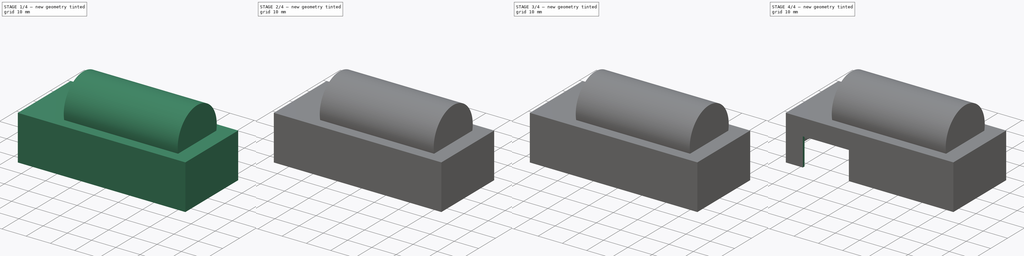
[diagram: build sequence overview — one tinted view per stage of 4, left to right]
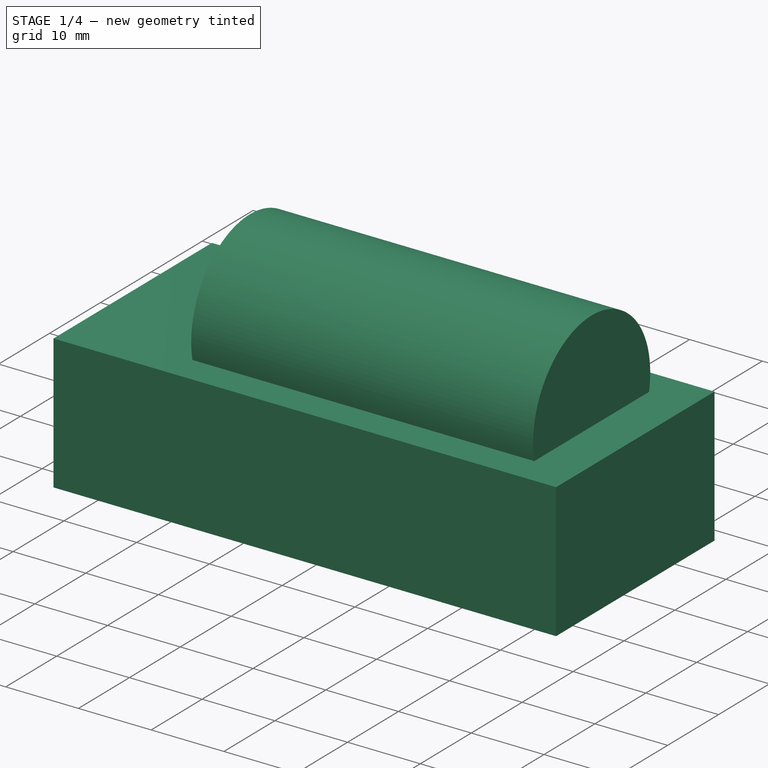
[diagram: stage 1 of 4 — iso view after this stage's code; geometry added in this stage tinted green]
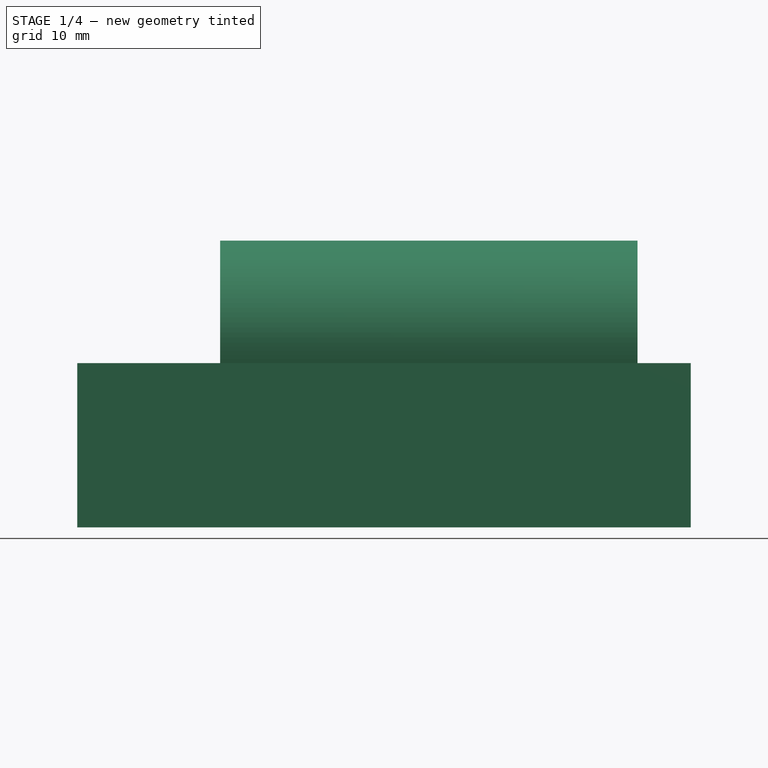
[diagram: stage 1 of 4 — front view after this stage's code; geometry added in this stage tinted green]
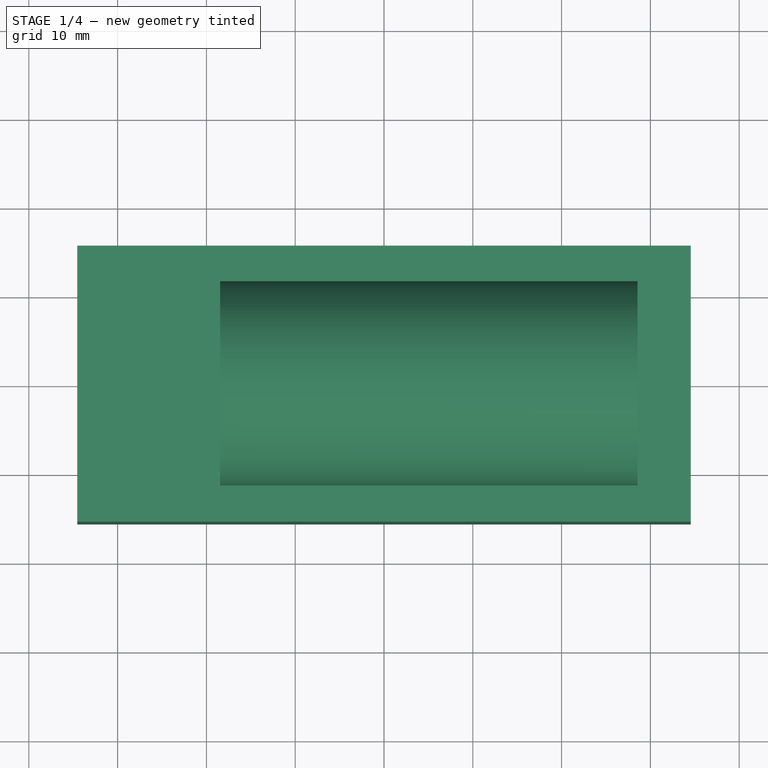
[diagram: stage 1 of 4 — top view after this stage's code; geometry added in this stage tinted green]
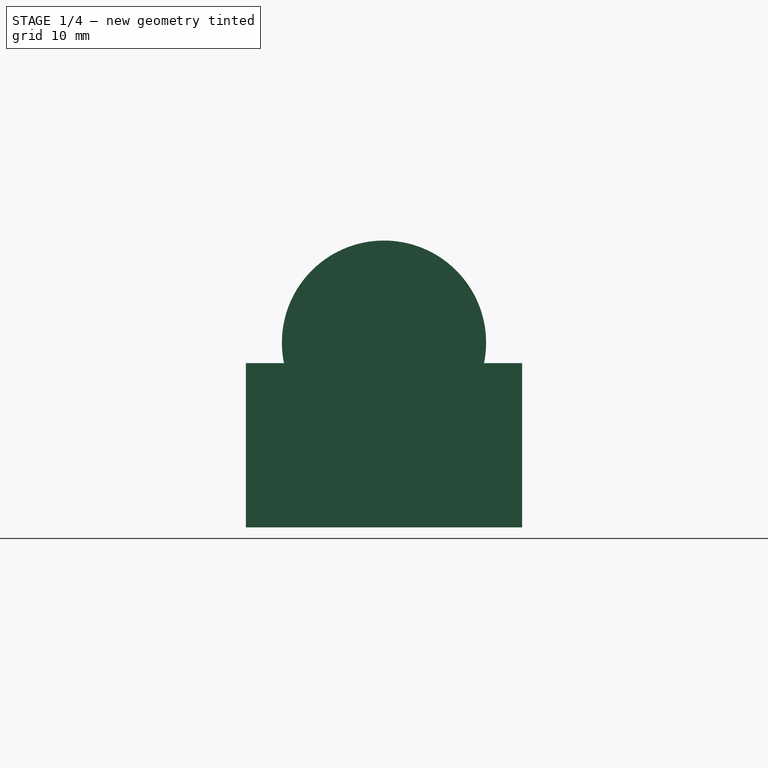
[diagram: stage 1 of 4 — right view after this stage's code; geometry added in this stage tinted green]
FCSTD DOCUMENT  (FreeCAD 0.20R29177 +426 (Git))
Label: ttgo
License: All rights reserved
LicenseURL: http://en.wikipedia.org/wiki/All_rights_reserved
objects: Sketcher::SketchObject×8, PartDesign::Pad×3, PartDesign::Pocket×3, Spreadsheet::Sheet×1, PartDesign::AdditiveCylinder×1, PartDesign::SubtractiveCylinder×1, PartDesign::SubtractiveBox×1, PartDesign::Body×1
note: 27 computed .brp shape members not serialized (recipe doc carries the construction recipe); baked Part::Feature solids carry a one-line shape summary decoded from their .brp

FEATURE [Spreadsheet::Sheet] Spreadsheet  label="args"
  cells = A2=ttgo_len; B2(ttgo_len)==65.09999999999999mm; A3=ttgo_w; B3(ttgo_w)==27.1mm; A4=ttgo_pcb_h; B4(ttgo_pcb_h)==1.3mm; A5=ttgo_lcd_h; B5(ttgo_lcd_h)==4.51mm; A6=ttgo_sd_h; B6==2.73mm; A7=ttgo_wifi_h; B7(ttgo_wifi_h)==3.5mm; A8=ttgo_lora_h; B8(ttgo_lora_h)==10.7mm; A9=ttgo_hole_d; B9(ttgo_hole_d)==2mm; A10=ttgo_hole_edge_dist; B10(ttgo_hole_edge_dist)==24.1mm; A11=ttgo_hole_edge_padding_top; B11(ttgo_hole_edge_padding_top)==4.6mm; A12=ttgo_hole_edge_padding_right; B12(ttgo_hole_edge_padding_right)==4mm; A13=ttgo_wifi_w; B13(ttgo_wifi_w)==6mm; A14=batt_d; B14(batt_d)==21mm; A15=wall_t; B15(wall_t)==1mm; A16=pcb_padding; B16(pcb_padding)==1mm; A17=bat_l; B17(bat_l)==45mm; A18=ttgo_lora_center_left; B18(ttgo_lora_center_left)==14.5mm; A19=ttgo_lora_w; B19(ttgo_lora_w)==8mm
FEATURE [Sketcher::SketchObject] Sketch  label="base"
  FullyConstrained = true
  MapMode = 5
  Support = -> [XY_Plane]
  expr: Constraints[10] = <<args>>.ttgo_w
  expr: Constraints[11] = <<args>>.ttgo_len
  expr: Constraints[22] = <<args>>.pcb_padding
  expr: Constraints[23] = <<args>>.pcb_padding
  sketch-geometry (10):
    g0: LineSegment StartX=-32.55 StartY=13.55 StartZ=0 EndX=-32.55 EndY=-13.55 EndZ=0
    g1: LineSegment StartX=-32.55 StartY=-13.55 StartZ=0 EndX=32.55 EndY=-13.55 EndZ=0
    g2: LineSegment StartX=32.55 StartY=-13.55 StartZ=0 EndX=32.55 EndY=13.55 EndZ=0
    g3: LineSegment StartX=32.55 StartY=13.55 StartZ=0 EndX=-32.55 EndY=13.55 EndZ=0
    g4: GeomPoint X=0 Y=0 Z=0
    g5: LineSegment StartX=-33.55 StartY=14.55 StartZ=0 EndX=-33.55 EndY=-14.55 EndZ=0
    g6: LineSegment StartX=-33.55 StartY=-14.55 StartZ=0 EndX=33.55 EndY=-14.55 EndZ=0
    g7: LineSegment StartX=33.55 StartY=-14.55 StartZ=0 EndX=33.55 EndY=14.55 EndZ=0
    g8: LineSegment StartX=33.55 StartY=14.55 StartZ=0 EndX=-33.55 EndY=14.55 EndZ=0
    g9: GeomPoint X=0 Y=0 Z=0
  constraints (24):
    c: Coincident(g0,g1)
    c: Coincident(g1,g2)
    c: Coincident(g2,g3)
    c: Coincident(g3,g0)
    c: Horizontal(g1)
    c: Horizontal(g3)
    c: Vertical(g0)
    c: Vertical(g2)
    c: Symmetric(g1,g0,g4)
    c: Coincident(g4,g-1)
    c: DistanceY(g2,g2) = 27.1
    c: DistanceX(g3,g3) = 65.1
    c: Coincident(g5,g6)
    c: Coincident(g6,g7)
    c: Coincident(g7,g8)
    c: Coincident(g8,g5)
    c: Horizontal(g6)
    c: Horizontal(g8)
    c: Vertical(g5)
    c: Vertical(g7)
    c: Symmetric(g6,g5,g9)
    c: Coincident(g9,g4)
    c: DistanceX(g5,g0) = 1
    c: DistanceY(g5,g0) = 1
FEATURE [Sketcher::SketchObject] Sketch001  label="box"
  FullyConstrained = true
  MapMode = 5
  Support = -> [XY_Plane]
  expr: Constraints[10] = <<args>>.ttgo_w
  expr: Constraints[11] = <<args>>.ttgo_len
  expr: Constraints[22] = <<args>>.pcb_padding + <<args>>.wall_t
  expr: Constraints[23] = <<args>>.pcb_padding + <<args>>.wall_t
  sketch-geometry (10):
    g0: LineSegment StartX=-32.55 StartY=13.55 StartZ=0 EndX=-32.55 EndY=-13.55 EndZ=0
    g1: LineSegment StartX=-32.55 StartY=-13.55 StartZ=0 EndX=32.55 EndY=-13.55 EndZ=0
    g2: LineSegment StartX=32.55 StartY=-13.55 StartZ=0 EndX=32.55 EndY=13.55 EndZ=0
    g3: LineSegment StartX=32.55 StartY=13.55 StartZ=0 EndX=-32.55 EndY=13.55 EndZ=0
    g4: GeomPoint X=0 Y=0 Z=0
    g5: LineSegment StartX=-34.55 StartY=15.55 StartZ=0 EndX=-34.55 EndY=-15.55 EndZ=0
    g6: LineSegment StartX=-34.55 StartY=-15.55 StartZ=0 EndX=34.55 EndY=-15.55 EndZ=0
    g7: LineSegment StartX=34.55 StartY=-15.55 StartZ=0 EndX=34.55 EndY=15.55 EndZ=0
    g8: LineSegment StartX=34.55 StartY=15.55 StartZ=0 EndX=-34.55 EndY=15.55 EndZ=0
    g9: GeomPoint X=0 Y=0 Z=0
  constraints (24):
    c: Coincident(g0,g1)
    c: Coincident(g1,g2)
    c: Coincident(g2,g3)
    c: Coincident(g3,g0)
    c: Horizontal(g1)
    c: Horizontal(g3)
    c: Vertical(g0)
    c: Vertical(g2)
    c: Symmetric(g1,g0,g4)
    c: Coincident(g4,g-1)
    c: DistanceY(g2,g2) = 27.1
    c: DistanceX(g3,g3) = 65.1
    c: Coincident(g5,g6)
    c: Coincident(g6,g7)
    c: Coincident(g7,g8)
    c: Coincident(g8,g5)
    c: Horizontal(g6)
    c: Horizontal(g8)
    c: Vertical(g5)
    c: Vertical(g7)
    c: Symmetric(g6,g5,g9)
    c: Coincident(g9,g4)
    c: DistanceX(g5,g0) = 2
    c: DistanceY(g5,g0) = 2
FEATURE [PartDesign::Pad] Pad  label="BoxPad"
  Direction = (0,0,1)
  Length = 18.51
  Length2 = 10
  Profile = -> Sketch001
  ReferenceAxis = -> Sketch001 [N_Axis]
  Type = 0
  expr: Length = <<args>>.ttgo_lcd_h + <<args>>.ttgo_pcb_h + <<args>>.ttgo_lora_h + <<args>>.pcb_padding + <<args>>.wall_t
FEATURE [Sketcher::SketchObject] Sketch002  label="battery"
  AttachmentOffset = pos=(0,0,-4) rot=(0,0,1;0rad)
  FullyConstrained = true
  MapMode = 5
  Placement = pos=(-30.55,0,0) rot=(0.57735,-0.57735,-0.57735;2.0944rad)
  Support = -> [Pad]
  expr: .AttachmentOffset.Base.z = -<<args>>.ttgo_wifi_w + 2 * <<args>>.pcb_padding
  expr: Constraints[1] = <<args>>.batt_d
  expr: Constraints[4] = <<args>>.ttgo_pcb_h + <<args>>.ttgo_wifi_h
  sketch-geometry (2):
    g0: Circle CenterX=0 CenterY=15.3 CenterZ=0 NormalX=0 NormalY=0 NormalZ=1 AngleXU=0 Radius=10.5
    g1: GeomPoint X=0 Y=4.8 Z=0
  constraints (5):
    c: PointOnObject(g0,g-2)
    c: Diameter(g0) = 21
    c: PointOnObject(g1,g0)
    c: PointOnObject(g1,g-2)
    c: DistanceY(g-1,g1) = 4.8
FEATURE [PartDesign::AdditiveCylinder] Cylinder  label="BatteryCylinder"
  Angle = 360
  AttacherType = Attacher::AttachEngine3D
  AttachmentOffset = pos=(0,20.81,6) rot=(0,0,1;0rad)
  BaseFeature = -> Pad
  FirstAngle = 0
  Height = 47
  MapMode = 5
  Placement = pos=(28.55,0,20.81) rot=(0.57735,-0.57735,-0.57735;2.0944rad)
  Radius = 11.5
  SecondAngle = 0
  Support = -> [Pad]
  expr: .AttachmentOffset.Base.y = <<args>>.batt_d / 2 + <<args>>.ttgo_lcd_h + <<args>>.ttgo_pcb_h + <<args>>.ttgo_wifi_h + <<args>>.wall_t
  expr: .AttachmentOffset.Base.z = <<args>>.ttgo_wifi_w
  expr: Height = <<args>>.bat_l + 2 * <<args>>.wall_t
  expr: Radius = <<args>>.batt_d / 2 + <<args>>.wall_t
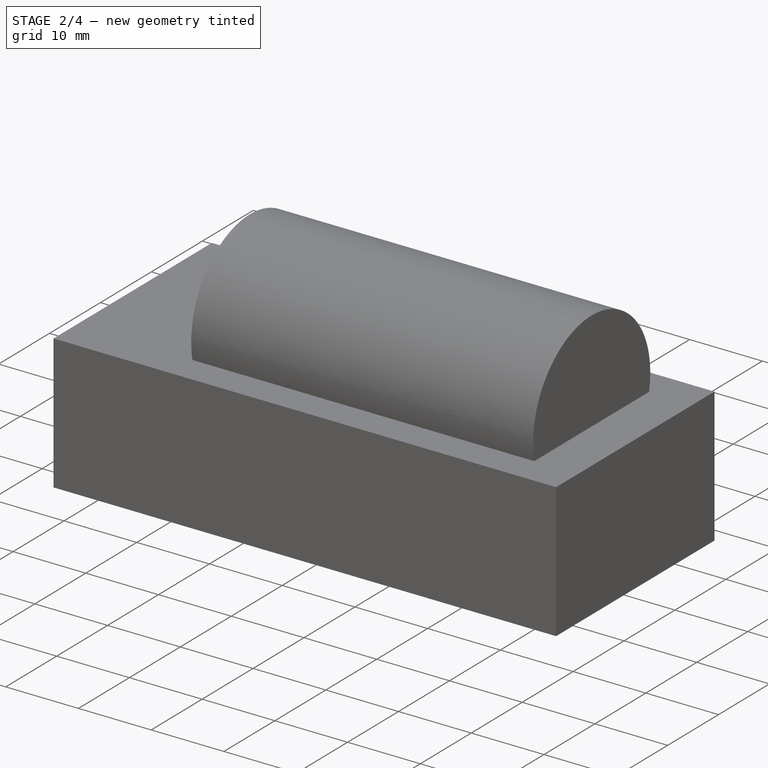
[diagram: stage 2 of 4 — iso view after this stage's code; geometry added in this stage tinted green]
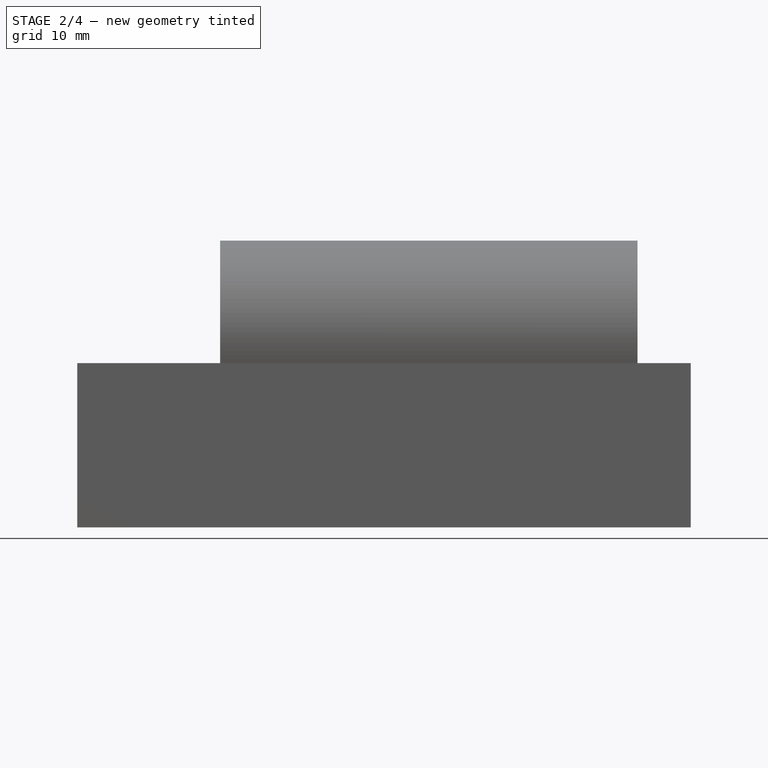
[diagram: stage 2 of 4 — front view after this stage's code; geometry added in this stage tinted green]
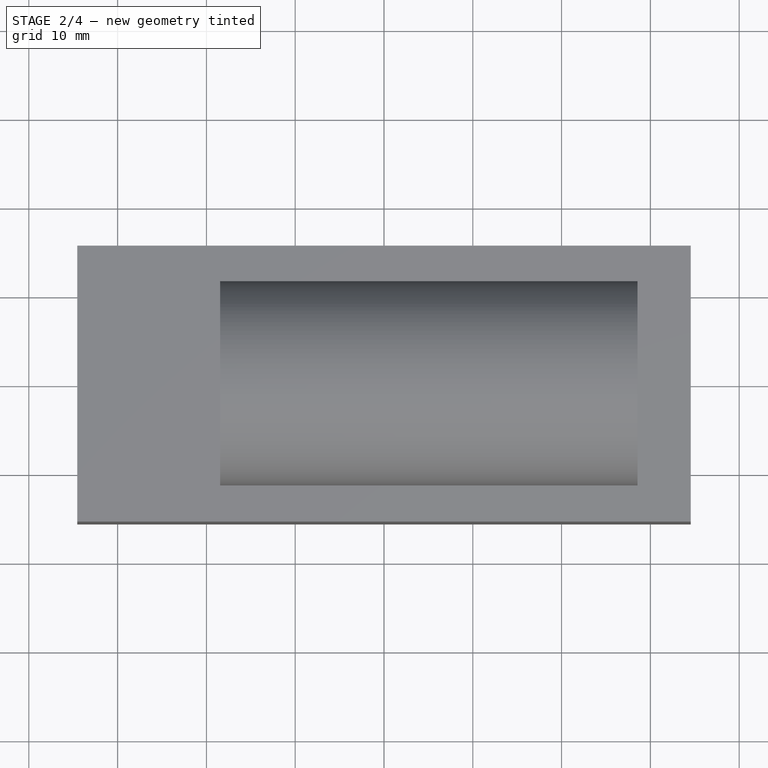
[diagram: stage 2 of 4 — top view after this stage's code; geometry added in this stage tinted green]
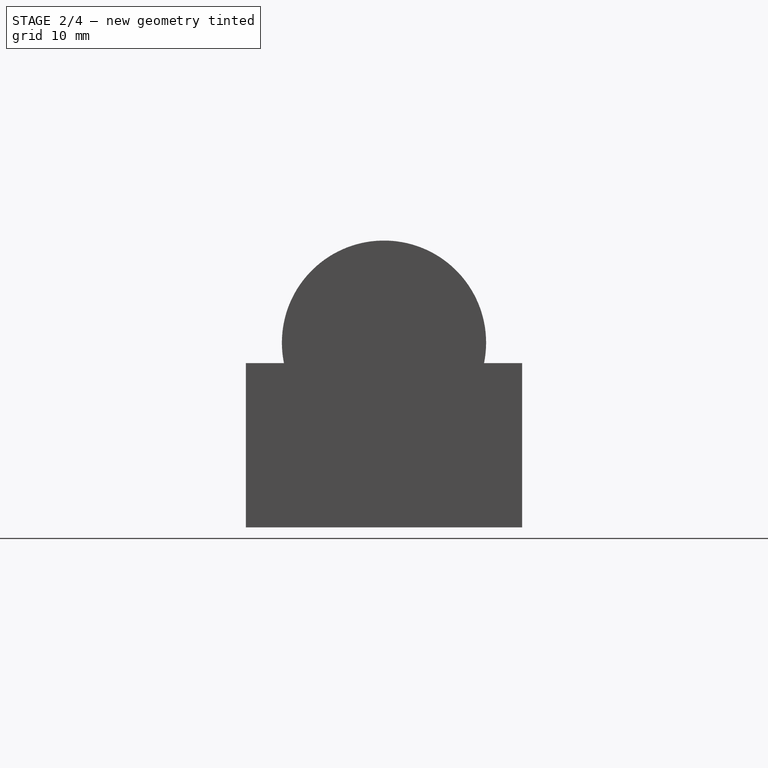
[diagram: stage 2 of 4 — right view after this stage's code; geometry added in this stage tinted green]
FEATURE [PartDesign::SubtractiveCylinder] Cylinder001  label="InnerBattaryCylinder"
  Angle = 360
  AttacherType = Attacher::AttachEngine3D
  AttachmentOffset = pos=(0,0,1) rot=(0,0,1;0rad)
  BaseFeature = -> Cylinder
  FirstAngle = 0
  Height = 45
  MapMode = 5
  Placement = pos=(27.55,0,20.81) rot=(0.57735,0.57735,-0.57735;4.18879rad)
  Radius = 10.5
  SecondAngle = 0
  Support = -> [Cylinder]
  expr: .AttachmentOffset.Base.z = <<args>>.wall_t
  expr: Height = <<args>>.bat_l
  expr: Radius = <<args>>.batt_d / 2
FEATURE [PartDesign::SubtractiveBox] Box  label="WallsExtractorBox"
  AttacherType = Attacher::AttachEngine3D
  AttachmentOffset = pos=(-33.55,-14.55,0) rot=(0,0,1;0rad)
  BaseFeature = -> Cylinder001
  Height = 17.51
  Length = 67.1
  MapMode = 5
  Placement = pos=(-33.55,-14.55,0) rot=(0,0,1;0rad)
  Support = -> [XY_Plane]
  Width = 29.1
  expr: .AttachmentOffset.Base.x = -(<<args>>.ttgo_len + 2 * <<args>>.pcb_padding) / 2
  expr: .AttachmentOffset.Base.y = -(<<args>>.ttgo_w + 2 * <<args>>.pcb_padding) / 2
  expr: Height = <<args>>.ttgo_lcd_h + <<args>>.ttgo_pcb_h + <<args>>.ttgo_lora_h + <<args>>.pcb_padding
  expr: Length = <<args>>.ttgo_len + 2 * <<args>>.pcb_padding
  expr: Width = <<args>>.ttgo_w + 2 * <<args>>.pcb_padding
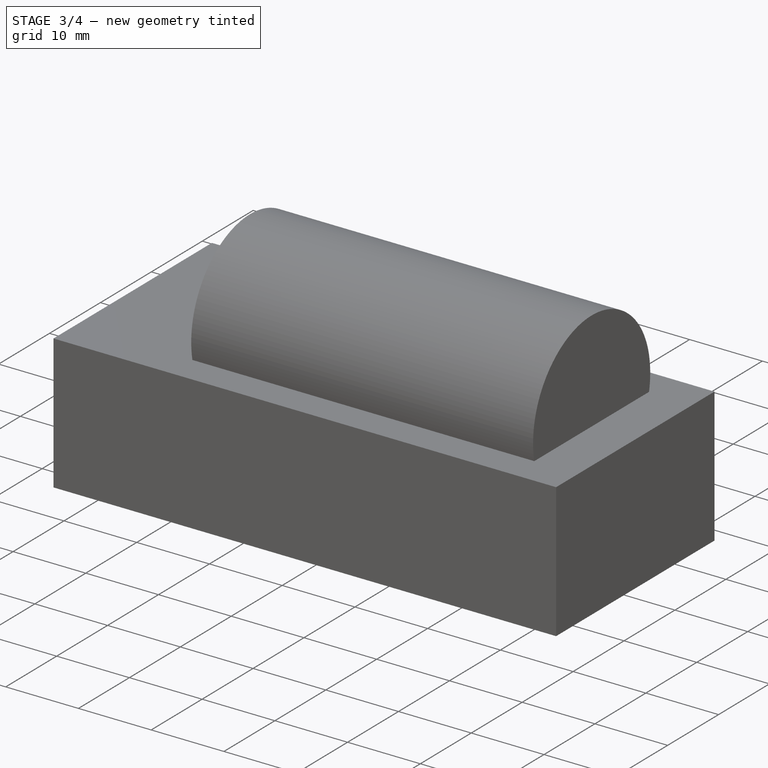
[diagram: stage 3 of 4 — iso view after this stage's code; geometry added in this stage tinted green]
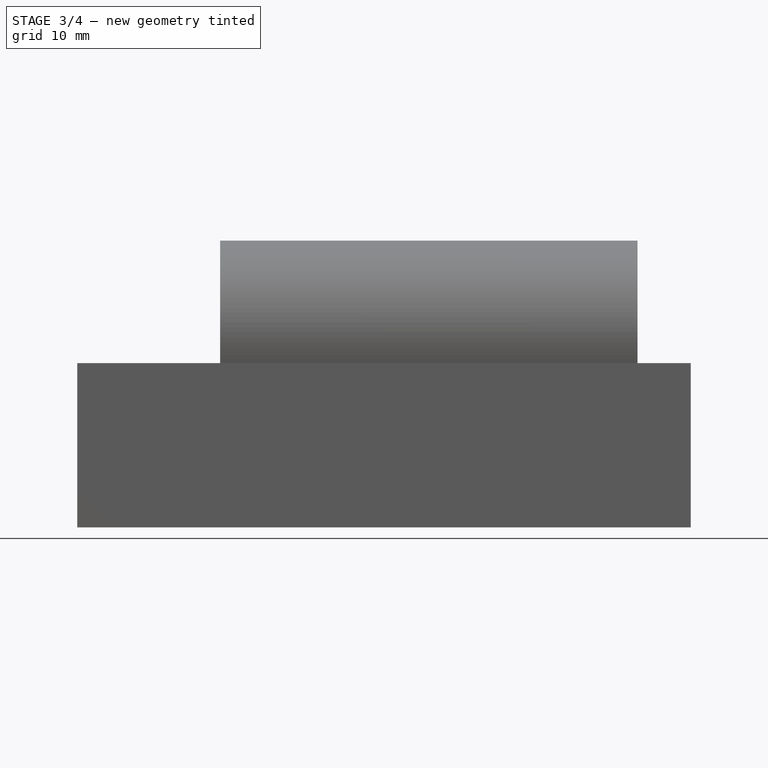
[diagram: stage 3 of 4 — front view after this stage's code; geometry added in this stage tinted green]
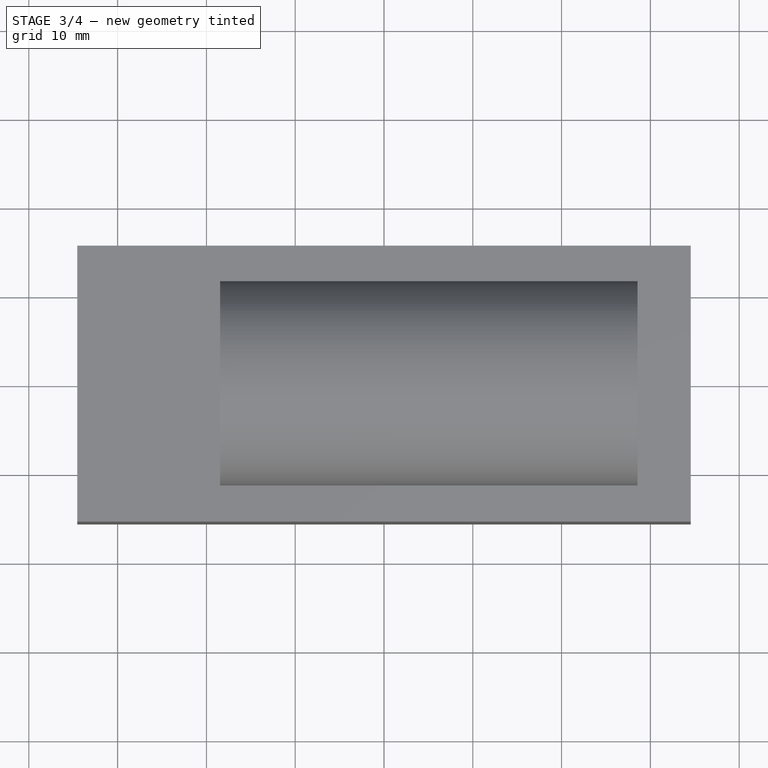
[diagram: stage 3 of 4 — top view after this stage's code; geometry added in this stage tinted green]
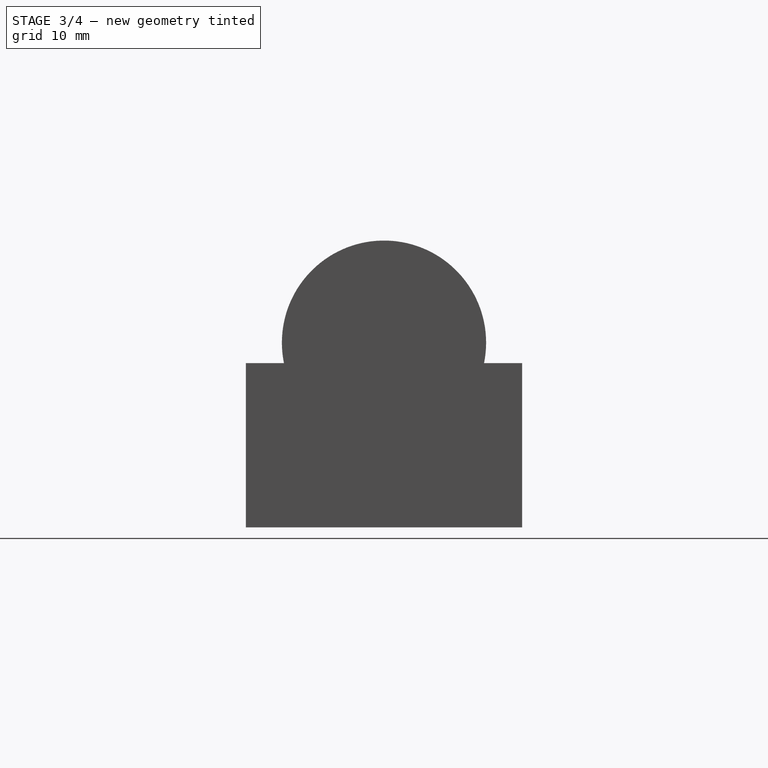
[diagram: stage 3 of 4 — right view after this stage's code; geometry added in this stage tinted green]
FEATURE [Sketcher::SketchObject] Sketch003  label="ttgo_holders"
  ExternalGeometry = -> [Box]
  FullyConstrained = true
  MapMode = 5
  Placement = pos=(-33.55,-14.55,17.51) rot=(1,0,0;3.14159rad)
  Support = -> [Box]
  expr: Constraints[10] = <<args>>.ttgo_hole_d
  expr: Constraints[11] = <<args>>.ttgo_hole_edge_dist
  expr: Constraints[18] = <<args>>.ttgo_hole_edge_padding_right + <<args>>.pcb_padding
  sketch-geometry (16):
    g0: Circle CenterX=63.1 CenterY=-2.5 CenterZ=0 NormalX=0 NormalY=0 NormalZ=1 AngleXU=0 Radius=1
    g1: Circle CenterX=63.1 CenterY=-24.6 CenterZ=0 NormalX=0 NormalY=0 NormalZ=1 AngleXU=0 Radius=1
    g2: LineSegment StartX=63.1 StartY=-2.5 StartZ=0 EndX=63.1 EndY=-24.6 EndZ=0
    g3: LineSegment StartX=63.1 StartY=-2.5 StartZ=0 EndX=63.1 EndY=-1.5 EndZ=0
    g4: LineSegment StartX=63.1 StartY=-24.6 StartZ=0 EndX=63.1 EndY=-25.6 EndZ=0
    g5: GeomPoint X=63.1 Y=-3.5 Z=0
    g6: LineSegment StartX=62.1 StartY=-2.5 StartZ=0 EndX=64.1 EndY=-2.5 EndZ=0
    g7: LineSegment StartX=67.1 StartY=0 StartZ=0 EndX=61.1 EndY=0 EndZ=0
    g8: LineSegment StartX=61.1 StartY=0 StartZ=0 EndX=61.1 EndY=-4.5 EndZ=0
    g9: LineSegment StartX=61.1 StartY=-4.5 StartZ=0 EndX=67.1 EndY=-4.5 EndZ=0
    g10: LineSegment StartX=67.1 StartY=-4.5 StartZ=0 EndX=67.1 EndY=0 EndZ=0
    g11: LineSegment StartX=67.1 StartY=-29.1 StartZ=0 EndX=61.1 EndY=-29.1 EndZ=0
    g12: LineSegment StartX=61.1 StartY=-29.1 StartZ=0 EndX=61.1 EndY=-22.6 EndZ=0
    g13: LineSegment StartX=61.1 StartY=-22.6 StartZ=0 EndX=67.1 EndY=-22.6 EndZ=0
    g14: LineSegment StartX=67.1 StartY=-22.6 StartZ=0 EndX=67.1 EndY=-29.1 EndZ=0
    g15: GeomPoint X=63.1 Y=-23.6 Z=0
  constraints (47):
    c: Coincident(g2,g0)
    c: Coincident(g2,g1)
    c: Vertical(g2)
    c: Coincident(g3,g0)
    c: PointOnObject(g3,g0)
    c: Vertical(g3)
    c: Coincident(g4,g1)
    c: PointOnObject(g4,g1)
    c: Vertical(g4)
    c: Equal(g0,g1)
    c: Diameter(g0) = 2
    c: DistanceY(g4,g3) = 24.1
    c: PointOnObject(g5,g2)
    c: PointOnObject(g5,g0)
    c: PointOnObject(g6,g0)
    c: PointOnObject(g6,g0)
    c: Horizontal(g6)
    c: PointOnObject(g0,g6)
    c: DistanceX(g6,g-4) = 5
    c: Coincident(g7,g8)
    c: Coincident(g8,g9)
    c: Coincident(g9,g10)
    c: Coincident(g10,g7)
    c: Horizontal(g7)
    c: Horizontal(g9)
    c: Vertical(g8)
    c: Vertical(g10)
    c: Coincident(g7,g-4)
    c: Coincident(g11,g12)
    c: Coincident(g12,g13)
    c: Coincident(g13,g14)
    c: Coincident(g14,g11)
    c: Horizontal(g11)
    c: Horizontal(g13)
    c: Vertical(g12)
    c: Vertical(g14)
    c: Coincident(g11,g-3)
    c: Equal(g9,g13)
    c: DistanceX(g9,g9) = 6
    c: PointOnObject(g15,g2)
    c: PointOnObject(g15,g1)
    c: DistanceY(g11,g15) = 5.5
    c: DistanceY(g15,g12) = 1
    c: DistanceY(g15,g12) = 1
    c: DistanceY(g8,g5) = 1
    c: DistanceY(g5,g7) = 3.5
    c: DistanceY(g8,g8) = 4.5
FEATURE [PartDesign::Pad] Pad001  label="MountingHolesPad"
  BaseFeature = -> Box
  Direction = (0,0,-1)
  Length = 10.7
  Length2 = 10
  Placement = pos=(-33.55,-14.55,0) rot=(0,0,1;0rad)
  Profile = -> Sketch003
  ReferenceAxis = -> Sketch003 [N_Axis]
  Type = 0
  expr: Length = <<args>>.ttgo_lora_h
FEATURE [Sketcher::SketchObject] Sketch004
  ExternalGeometry = -> [Pad001]
  FullyConstrained = true
  MapMode = 5
  Placement = pos=(-33.55,15.55,0) rot=(0,0.707107,0.707107;3.14159rad)
  Support = -> [Pad001]
  expr: Constraints[10] = <<args>>.pcb_padding + <<args>>.ttgo_lora_center_left
  expr: Constraints[8] = <<args>>.ttgo_lora_w
  sketch-geometry (5):
    g0: LineSegment StartX=-19.5 StartY=17.51 StartZ=0 EndX=-11.5 EndY=17.51 EndZ=0
    g1: LineSegment StartX=-11.5 StartY=17.51 StartZ=0 EndX=-11.5 EndY=0 EndZ=0
    g2: LineSegment StartX=-11.5 StartY=0 StartZ=0 EndX=-19.5 EndY=0 EndZ=0
    g3: LineSegment StartX=-19.5 StartY=0 StartZ=0 EndX=-19.5 EndY=17.51 EndZ=0
    g4: GeomPoint X=-15.5 Y=0 Z=0
  constraints (13):
    c: Coincident(g0,g1)
    c: Coincident(g1,g2)
    c: Coincident(g2,g3)
    c: Coincident(g3,g0)
    c: Horizontal(g0)
    c: Horizontal(g2)
    c: Vertical(g1)
    c: Vertical(g3)
    c: DistanceX(g2,g2) = 8
    c: Symmetric(g2,g1,g4)
    c: DistanceX(g4,g-1) = 15.5
    c: PointOnObject(g2,g-1)
    c: PointOnObject(g0,g-3)
FEATURE [PartDesign::Pocket] Pocket  label="LoraAntenaPocket"
  BaseFeature = -> Pad001
  Direction = (2e-16,-1,2e-16)
  Length = 5
  Length2 = 5
  Placement = pos=(-33.55,-14.55,0) rot=(0,0,1;0rad)
  Profile = -> Sketch004
  ReferenceAxis = -> Sketch004 [N_Axis]
  Type = 0
FEATURE [Sketcher::SketchObject] Sketch005
  ExternalGeometry = -> [Pocket]
  FullyConstrained = true
  MapMode = 5
  Placement = pos=(-33.55,-14.55,17.51) rot=(1,0,0;3.14159rad)
  Support = -> [Pocket]
  expr: Constraints[10] = <<args>>.ttgo_w / 2
  expr: Constraints[12] = <<args>>.ttgo_w / 2
  expr: Constraints[9] = <<args>>.pcb_padding + 2mm
  sketch-geometry (5):
    g0: LineSegment StartX=0 StartY=-6.775 StartZ=0 EndX=3 EndY=-6.775 EndZ=0
    g1: LineSegment StartX=3 StartY=-6.775 StartZ=0 EndX=3 EndY=-20.325 EndZ=0
    g2: LineSegment StartX=3 StartY=-20.325 StartZ=0 EndX=0 EndY=-20.325 EndZ=0
    g3: LineSegment StartX=0 StartY=-20.325 StartZ=0 EndX=0 EndY=-6.775 EndZ=0
    g4: GeomPoint X=3 Y=-13.55 Z=0
  constraints (13):
    c: Coincident(g0,g1)
    c: Coincident(g1,g2)
    c: Coincident(g2,g3)
    c: Coincident(g3,g0)
    c: Horizontal(g0)
    c: Horizontal(g2)
    c: Vertical(g1)
    c: Vertical(g3)
    c: PointOnObject(g0,g-4)
    c: DistanceX(g0,g0) = 3
    c: DistanceY(g1,g1) = 13.55
    c: Symmetric(g0,g1,g4)
    c: DistanceY(g4,g-4) = 13.55
FEATURE [PartDesign::Pad] Pad002  label="LeftPcbHolder"
  BaseFeature = -> Pocket
  Direction = (0,0,-1)
  Length = 10.7
  Length2 = 10
  Placement = pos=(-33.55,-14.55,0) rot=(0,0,1;0rad)
  Profile = -> Sketch005
  ReferenceAxis = -> Sketch005 [N_Axis]
  Type = 0
  expr: Length = <<args>>.ttgo_lora_h
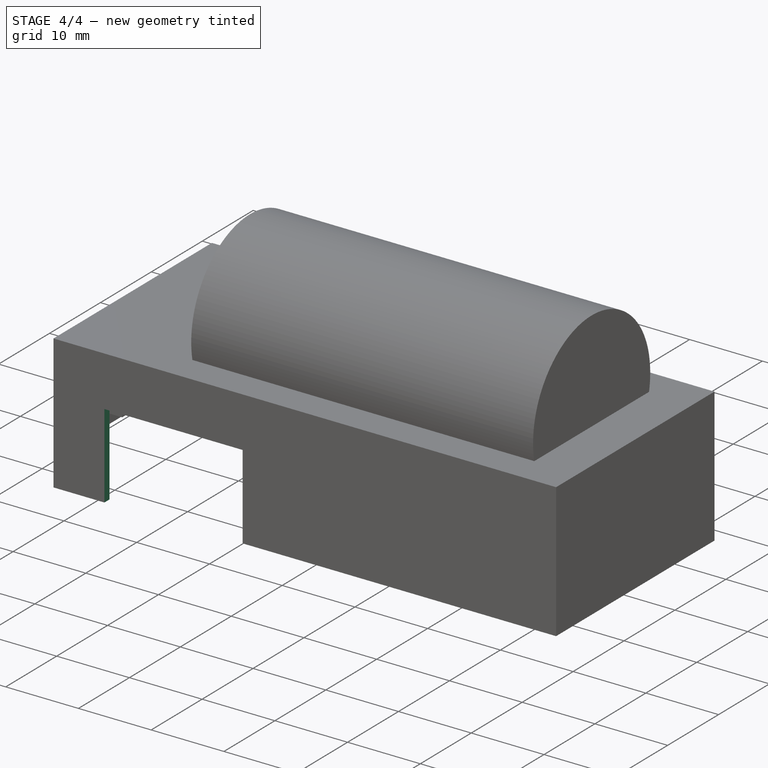
[diagram: stage 4 of 4 — iso view after this stage's code; geometry added in this stage tinted green]
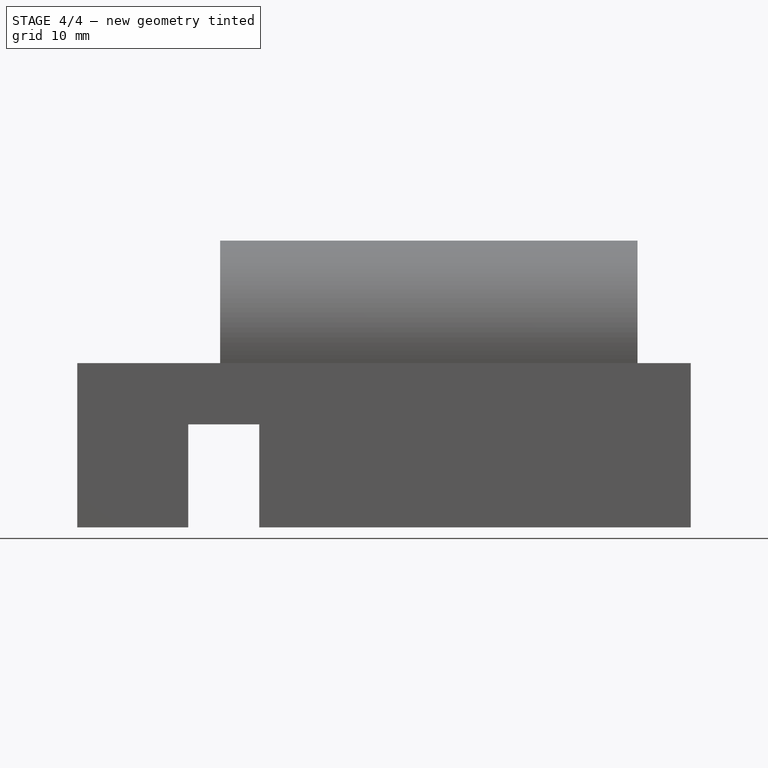
[diagram: stage 4 of 4 — front view after this stage's code; geometry added in this stage tinted green]
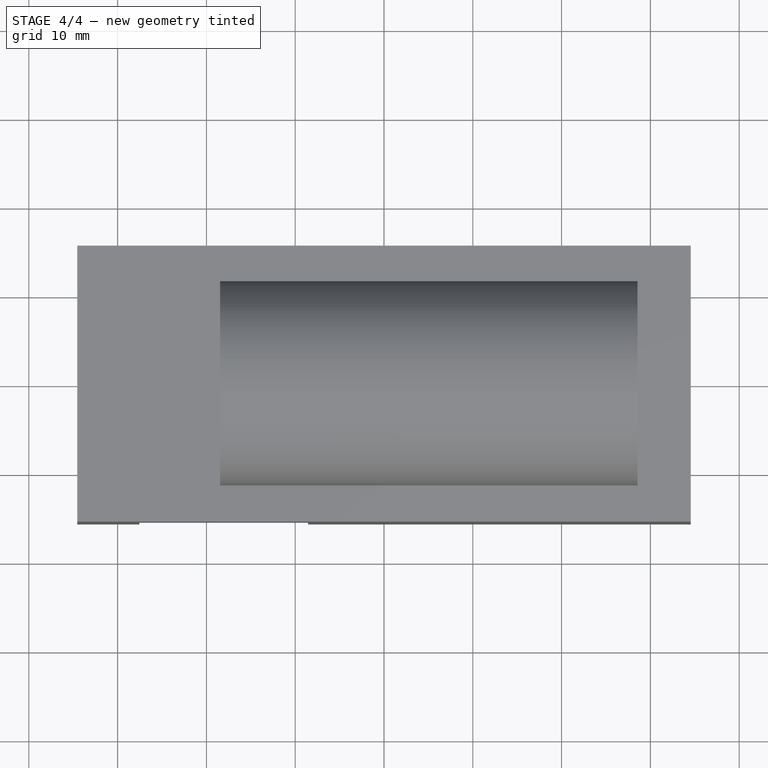
[diagram: stage 4 of 4 — top view after this stage's code; geometry added in this stage tinted green]
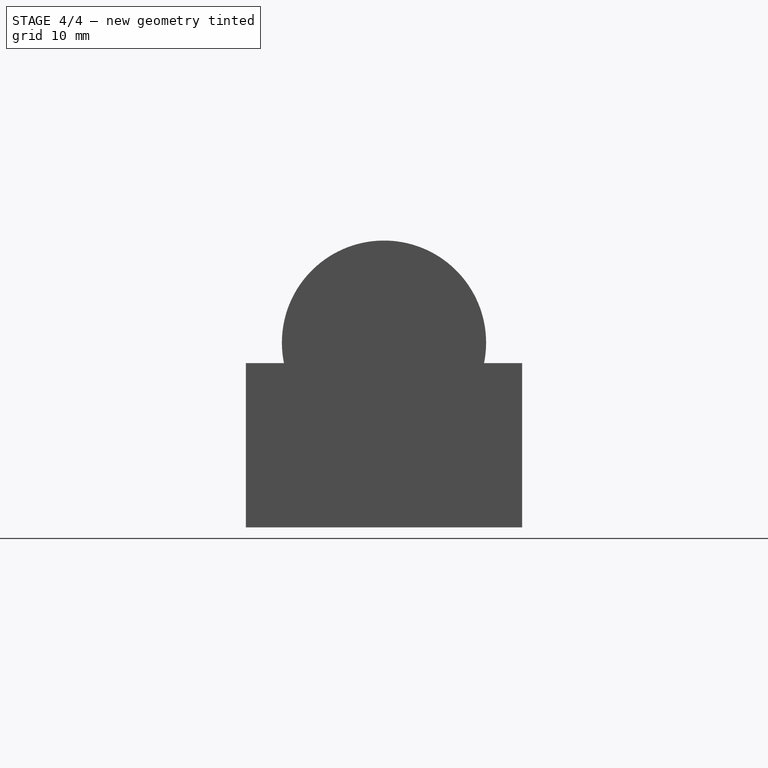
[diagram: stage 4 of 4 — right view after this stage's code; geometry added in this stage tinted green]
FEATURE [Sketcher::SketchObject] Sketch006
  ExternalGeometry = -> [Pad002]
  FullyConstrained = true
  MapMode = 5
  Placement = pos=(-33.55,-15.55,0) rot=(1,0,0;1.5708rad)
  Support = -> [Pad002]
  expr: Constraints[11] = <<args>>.wall_t + <<args>>.ttgo_lora_h - <<args>>.ttgo_wifi_h - <<args>>.ttgo_pcb_h
  expr: Constraints[9] = <<args>>.pcb_padding + 5mm
  sketch-geometry (4):
    g0: LineSegment StartX=6 StartY=11.61 StartZ=0 EndX=25 EndY=11.61 EndZ=0
    g1: LineSegment StartX=25 StartY=11.61 StartZ=0 EndX=25 EndY=0 EndZ=0
    g2: LineSegment StartX=25 StartY=0 StartZ=0 EndX=6 EndY=0 EndZ=0
    g3: LineSegment StartX=6 StartY=0 StartZ=0 EndX=6 EndY=11.61 EndZ=0
  constraints (12):
    c: Coincident(g0,g1)
    c: Coincident(g1,g2)
    c: Coincident(g2,g3)
    c: Coincident(g3,g0)
    c: Horizontal(g0)
    c: Horizontal(g2)
    c: Vertical(g1)
    c: Vertical(g3)
    c: PointOnObject(g2,g-1)
    c: DistanceX(g2) = 6
    c: DistanceX(g2,g2) = 19
    c: DistanceY(g0,g-3) = 6.9
FEATURE [PartDesign::Pocket] Pocket001  label="ButtonsPocket"
  BaseFeature = -> Pad002
  Direction = (-2e-16,1,-2e-16)
  Length = 5
  Length2 = 5
  Placement = pos=(-33.55,-14.55,0) rot=(0,0,1;0rad)
  Profile = -> Sketch006
  ReferenceAxis = -> Sketch006 [N_Axis]
  Type = 0
FEATURE [Sketcher::SketchObject] Sketch007
  ExternalGeometry = -> [Pocket001]
  FullyConstrained = true
  MapMode = 5
  Placement = pos=(-34.55,-14.55,-1e-16) rot=(0.57735,-0.57735,-0.57735;2.0944rad)
  Support = -> [Pocket001]
  expr: Constraints[15] = <<args>>.ttgo_lcd_h
  sketch-geometry (7):
    g0: LineSegment StartX=-24.55 StartY=0 StartZ=0 EndX=-2.55 EndY=0 EndZ=0
    g1: LineSegment StartX=-2.55 StartY=0 StartZ=0 EndX=-2.55 EndY=4.51 EndZ=0
    g2: LineSegment StartX=-2.55 StartY=4.51 StartZ=0 EndX=-24.55 EndY=4.51 EndZ=0
    g3: LineSegment StartX=-24.55 StartY=4.51 StartZ=0 EndX=-24.55 EndY=0 EndZ=0
    g4: GeomPoint X=-13.55 Y=17.51 Z=0
    g5: GeomPoint X=-13.55 Y=4.51 Z=0
    g6: LineSegment StartX=-13.55 StartY=17.51 StartZ=0 EndX=-13.55 EndY=4.51 EndZ=0
  constraints (16):
    c: Coincident(g0,g1)
    c: Coincident(g1,g2)
    c: Coincident(g2,g3)
    c: Coincident(g3,g0)
    c: Horizontal(g0)
    c: Horizontal(g2)
    c: Vertical(g1)
    c: Vertical(g3)
    c: PointOnObject(g0,g-1)
    c: DistanceX(g0,g0) = 22
    c: Symmetric(g-3,g-3,g4)
    c: Symmetric(g2,g1,g5)
    c: Coincident(g6,g4)
    c: Coincident(g6,g5)
    c: Vertical(g6)
    c: DistanceY(g3,g3) = 4.51
FEATURE [PartDesign::Pocket] Pocket002  label="ConnectorsPocket"
  BaseFeature = -> Pocket001
  Direction = (1,0,0)
  Length = 5
  Length2 = 5
  Placement = pos=(-33.55,-14.55,0) rot=(0,0,1;0rad)
  Profile = -> Sketch007
  ReferenceAxis = -> Sketch007 [N_Axis]
  Type = 0
FEATURE [PartDesign::Body] Body
  Group = -> [Sketch,Sketch001,Pad,Sketch002,Cylinder,Cylinder001,Box,Sketch003,Pad001,Sketch004,Pocket,Sketch005,Pad002,Sketch006,Pocket001,Sketch007,Pocket002]
  Origin = -> Origin
  Tip = -> Pocket002
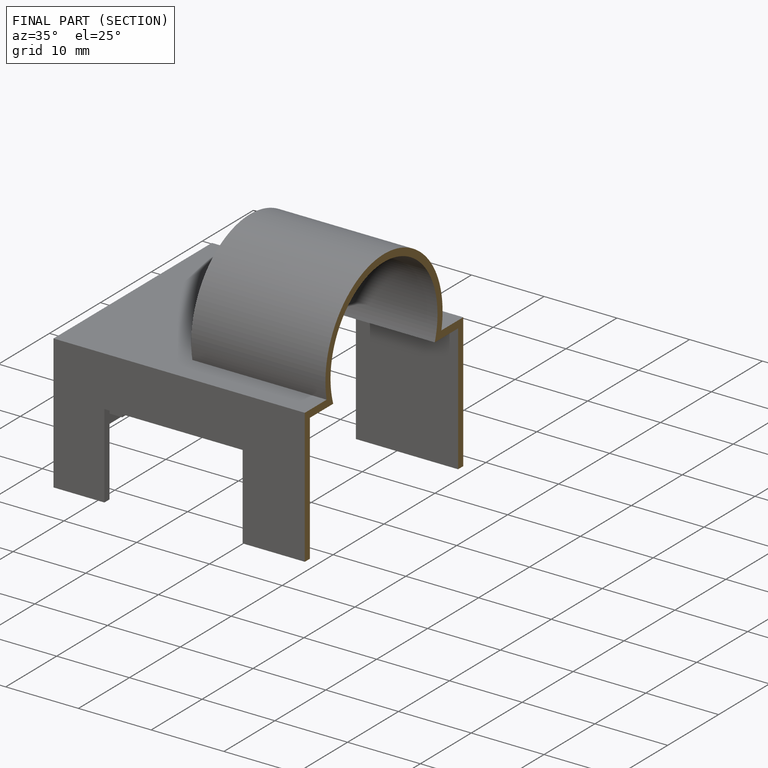
[diagram: finished part — half-section view (interior)]
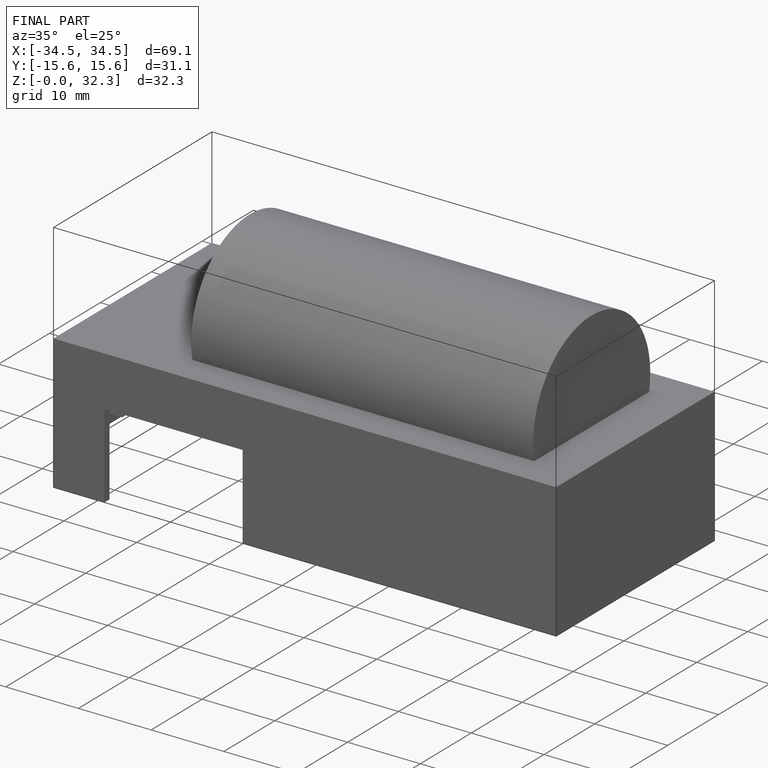
[diagram: finished part — iso view with bounding-box wireframe]
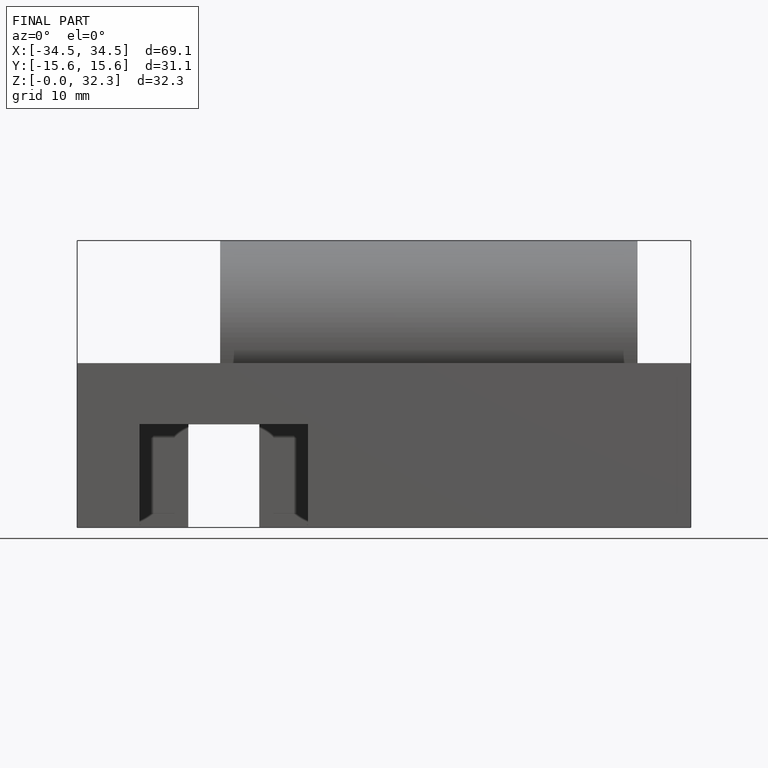
[diagram: finished part — front view with bounding-box wireframe]
